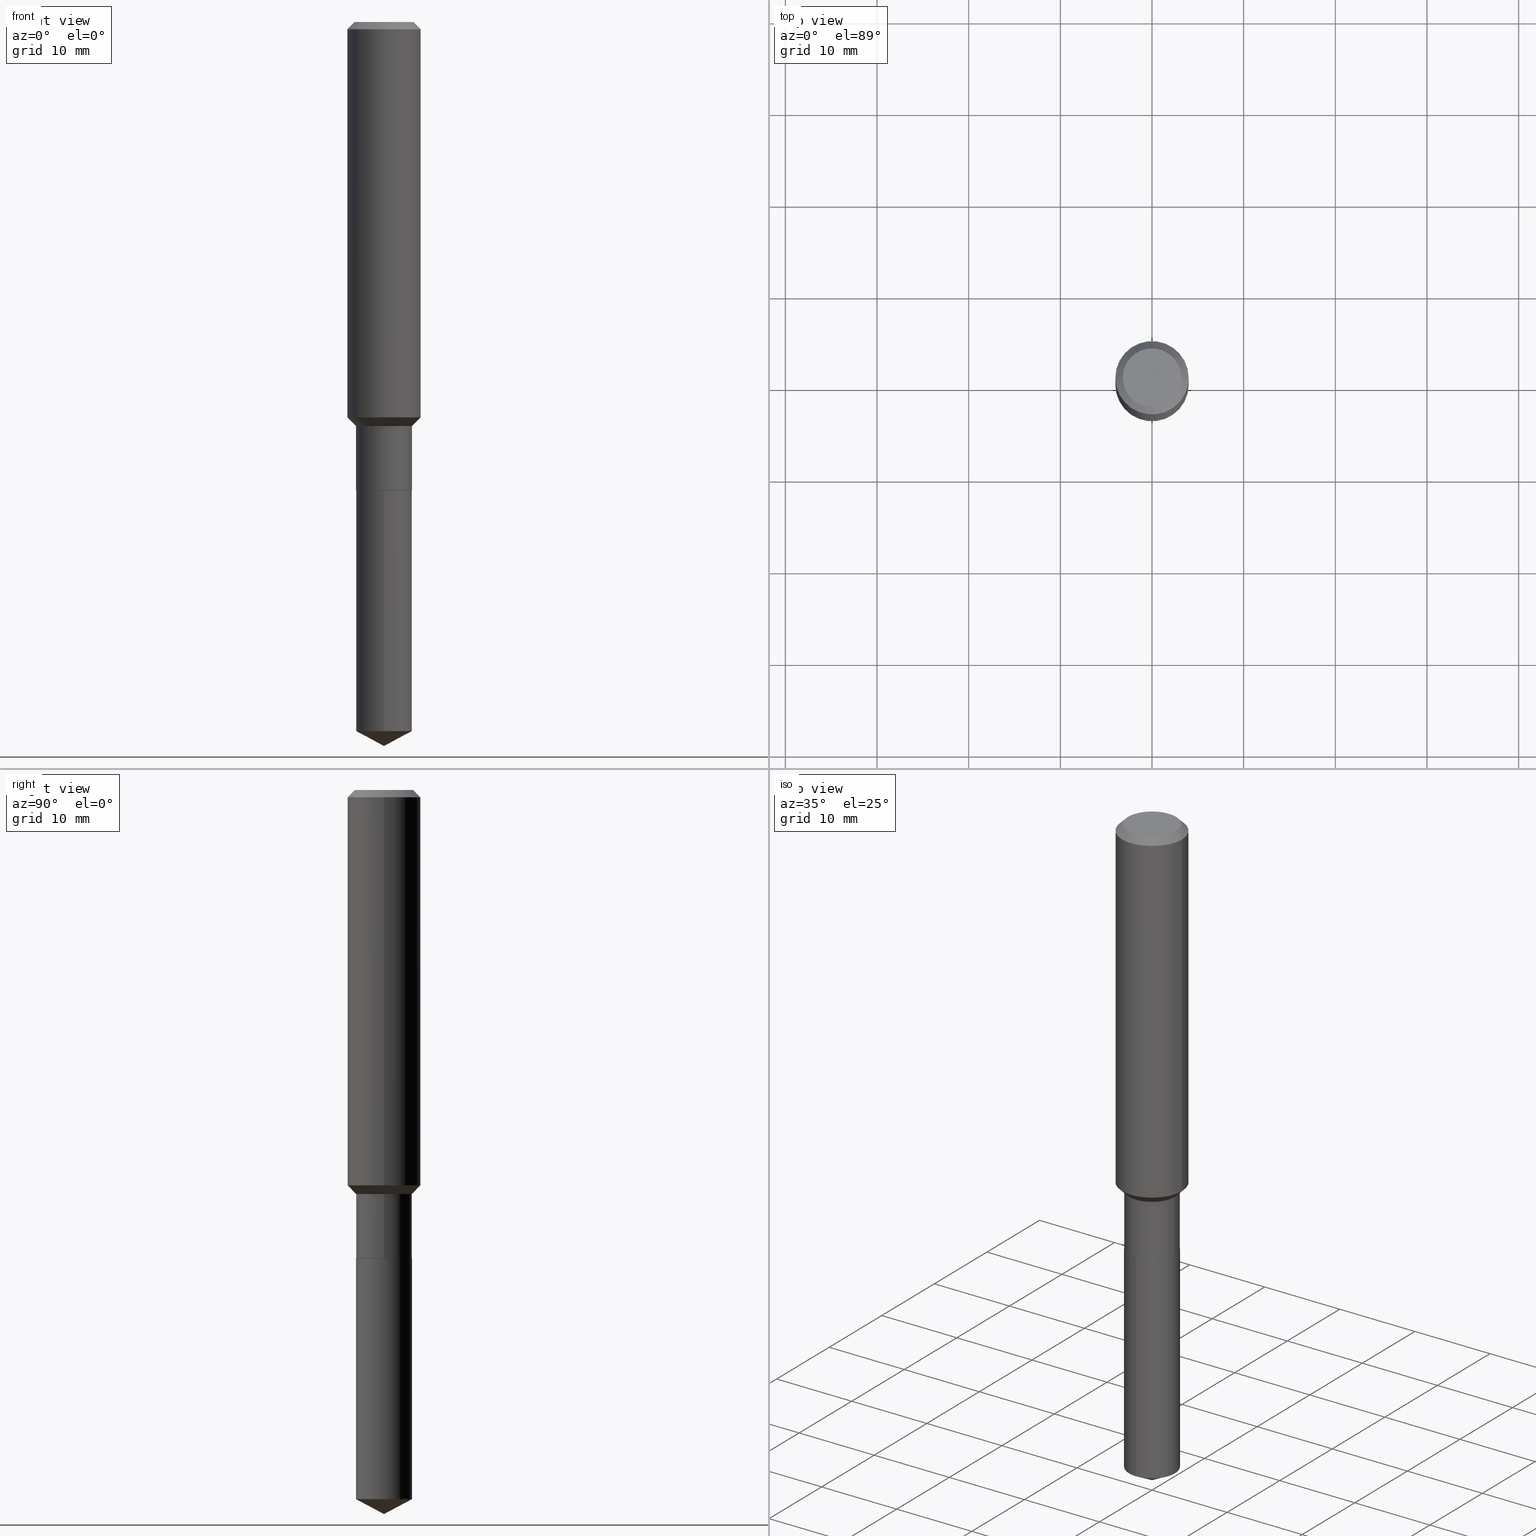
[diagram: canonical four-view strip — front | top / right | iso, engineering-drawing reading convention]
A machine part, canonical four-view strip (front | top / right | iso — engineering-drawing reading convention). The complete STEP part file that produces these views, byte-faithful:
ISO-10303-21;
HEADER;
FILE_DESCRIPTION (( 'STEP AP203' ),
    '1' );
FILE_NAME ('67631.STEP',
    '2024-04-25T07:45:41',
    ( '' ),
    ( '' ),
    'SwSTEP 2.0',
    'SolidWorks 2023',
    '' );
FILE_SCHEMA (( 'CONFIG_CONTROL_DESIGN' ));
ENDSEC;

DATA;
#1 = CARTESIAN_POINT ( 'NONE',  ( 4.919794144283257815E-29, -7.024162157484641016E-15, -2.011800000000000033 ) ) ;
#2 = PERSON_AND_ORGANIZATION_ROLE ( 'creator' ) ;
#3 = LINE ( 'NONE', #162, #369 ) ;
#4 = CIRCLE ( 'NONE', #431, 0.1201000000000000401 ) ;
#5 = ORIENTED_EDGE ( 'NONE', *, *, #61, .T. ) ;
#6 = FACE_OUTER_BOUND ( 'NONE', #237, .T. ) ;
#7 = ORIENTED_EDGE ( 'NONE', *, *, #128, .T. ) ;
#8 = PRODUCT ( '67631', '67631', '', ( #468 ) ) ;
#9 = DIRECTION ( 'NONE',  ( -2.438088387897960049E-29, 3.491481338843145188E-15, 1.000000000000000000 ) ) ;
#10 = CIRCLE ( 'NONE', #480, 0.1260000000000000009 ) ;
#11 = CIRCLE ( 'NONE', #453, 0.1200999999999999984 ) ;
#12 = SECURITY_CLASSIFICATION_LEVEL ( 'unclassified' ) ;
#13 = ORIENTED_EDGE ( 'NONE', *, *, #61, .F. ) ;
#14 = DIRECTION ( 'NONE',  ( 1.000000000000000000, -6.982962677686265922E-15, 0.000000000000000000 ) ) ;
#15 = EDGE_LOOP ( 'NONE', ( #247, #105, #462, #13 ) ) ;
#16 = CARTESIAN_POINT ( 'NONE',  ( -0.1575000000000000011, 9.898349595620272334E-16, -0.03150000000000018757 ) ) ;
#17 = CYLINDRICAL_SURFACE ( 'NONE', #236, 0.1575000000000000844 ) ;
#18 = ORIENTED_EDGE ( 'NONE', *, *, #154, .T. ) ;
#19 = DIRECTION ( 'NONE',  ( -6.982962677686267499E-15, -1.000000000000000000, 3.541896320645549825E-15 ) ) ;
#20 = CIRCLE ( 'NONE', #421, 0.1200999999999999984 ) ;
#21 = CC_DESIGN_SECURITY_CLASSIFICATION ( #406, ( #422 ) ) ;
#22 = EDGE_LOOP ( 'NONE', ( #458, #360, #288, #272 ) ) ;
#23 = DIRECTION ( 'NONE',  ( -2.445582076561770869E-29, 3.491319129216855831E-15, 1.000000000000000000 ) ) ;
#24 = EDGE_CURVE ( 'NONE', #467, #350, #124, .T. ) ;
#25 = COORDINATED_UNIVERSAL_TIME_OFFSET ( 5, 0, .BEHIND. ) ;
#26 = ORIENTED_EDGE ( 'NONE', *, *, #414, .T. ) ;
#27 = DIRECTION ( 'NONE',  ( -2.445582076561770869E-29, 3.491319129216855831E-15, 1.000000000000000000 ) ) ;
#28 = PRODUCT_RELATED_PRODUCT_CATEGORY ( 'detail', '', ( #8 ) ) ;
#29 = DIRECTION ( 'NONE',  ( 1.000000000000000000, -6.982962677686265922E-15, 4.876281427513067258E-29 ) ) ;
#30 = CARTESIAN_POINT ( 'NONE',  ( 4.919794144283257815E-29, -7.024162157484641016E-15, -2.011800000000000033 ) ) ;
#31 = CIRCLE ( 'NONE', #301, 0.1200999999999999984 ) ;
#32 = CONICAL_SURFACE ( 'NONE', #309, 0.1575000000000000011, 0.7853981633974452814 ) ;
#33 = AXIS2_PLACEMENT_3D ( 'NONE', #333, #43, #381 ) ;
#34 = EDGE_CURVE ( 'NONE', #42, #181, #263, .T. ) ;
#35 = VERTEX_POINT ( 'NONE', #380 ) ;
#36 = CALENDAR_DATE ( 2024, 25, 4 ) ;
#37 = DIRECTION ( 'NONE',  ( -2.445582076561770869E-29, 3.491319129216855831E-15, 1.000000000000000000 ) ) ;
#38 = ADVANCED_FACE ( 'NONE', ( #79 ), #330, .T. ) ;
#39 = CC_DESIGN_DATE_AND_TIME_ASSIGNMENT ( #285, #466, ( #406 ) ) ;
#40 = ORIENTED_EDGE ( 'NONE', *, *, #148, .F. ) ;
#41 = PERSON_AND_ORGANIZATION ( #371, #198 ) ;
#42 = VERTEX_POINT ( 'NONE', #259 ) ;
#43 = DIRECTION ( 'NONE',  ( -2.445468806185136597E-29, 3.491481338843145583E-15, 1.000000000000000000 ) ) ;
#44 = VECTOR ( 'NONE', #164, 39.37007874015748143 ) ;
#45 = APPROVAL_PERSON_ORGANIZATION ( #111, #86, #60 ) ;
#46 = DIRECTION ( 'NONE',  ( -2.445582076561770869E-29, 3.491319129216855831E-15, 1.000000000000000000 ) ) ;
#47 = ORIENTED_EDGE ( 'NONE', *, *, #134, .T. ) ;
#48 = UNCERTAINTY_MEASURE_WITH_UNIT (LENGTH_MEASURE( 1.000000000000000082E-05 ), #294, 'distance_accuracy_value', 'NONE');
#49 = CARTESIAN_POINT ( 'NONE',  ( 0.1195999999999999980, -7.859324493735918300E-15, -2.011800000000000033 ) ) ;
#50 = ORIENTED_EDGE ( 'NONE', *, *, #243, .F. ) ;
#51 = EDGE_CURVE ( 'NONE', #317, #471, #10, .T. ) ;
#52 = ORIENTED_EDGE ( 'NONE', *, *, #51, .T. ) ;
#53 = ADVANCED_BREP_SHAPE_REPRESENTATION ( '67631', ( #165, #482, #141 ), #85 ) ;
#54 = CARTESIAN_POINT ( 'NONE',  ( -9.439721640706201686E-47, 1.347742071746726764E-32, 3.860086710912459732E-18 ) ) ;
#55 = CARTESIAN_POINT ( 'NONE',  ( 4.919794144283257815E-29, -7.024162157484641016E-15, -2.011800000000000033 ) ) ;
#56 = CONICAL_SURFACE ( 'NONE', #33, 0.1200999999999999984, 0.7853981633974510546 ) ;
#57 = PERSON_AND_ORGANIZATION_ROLE ( 'classification_officer' ) ;
#58 = VERTEX_POINT ( 'NONE', #446 ) ;
#59 = CARTESIAN_POINT ( 'NONE',  ( 0.1201000000000000401, -7.861070234405340592E-15, -2.011300000000000310 ) ) ;
#60 = APPROVAL_ROLE ( '' ) ;
#61 = EDGE_CURVE ( 'NONE', #425, #42, #118, .T. ) ;
#62 = ORIENTED_EDGE ( 'NONE', *, *, #186, .F. ) ;
#63 = DIRECTION ( 'NONE',  ( 1.000000000000000000, -6.982962677686267499E-15, 4.876176775795936353E-29 ) ) ;
#64 = DIRECTION ( 'NONE',  ( 0.7071067811865453523, -7.319954787623248157E-15, -0.7071067811865496822 ) ) ;
#65 = DIRECTION ( 'NONE',  ( 1.000000000000000000, -6.982962677686265922E-15, 4.876281427513067258E-29 ) ) ;
#66 = PERSON_AND_ORGANIZATION ( #371, #198 ) ;
#67 = ORIENTED_EDGE ( 'NONE', *, *, #332, .T. ) ;
#68 = LENGTH_MEASURE_WITH_UNIT ( LENGTH_MEASURE( 0.02539999999999999897 ), #106 );
#69 = FACE_OUTER_BOUND ( 'NONE', #386, .T. ) ;
#70 = AXIS2_PLACEMENT_3D ( 'NONE', #450, #271, #277 ) ;
#71 = DIRECTION ( 'NONE',  ( -2.445582076561770869E-29, 3.491319129216855831E-15, 1.000000000000000000 ) ) ;
#72 = CARTESIAN_POINT ( 'NONE',  ( 4.918571409880165574E-29, -7.022416416815219512E-15, -2.011300000000000310 ) ) ;
#73 = CARTESIAN_POINT ( 'NONE',  ( 0.000000000000000000, 0.000000000000000000, 0.000000000000000000 ) ) ;
#74 = PERSON_AND_ORGANIZATION_ROLE ( 'design_owner' ) ;
#75 = LINE ( 'NONE', #155, #349 ) ;
#76 = CARTESIAN_POINT ( 'NONE',  ( -0.1201000000000000539, -5.687753888607810649E-15, -2.011300000000000310 ) ) ;
#77 = CALENDAR_DATE ( 2024, 25, 4 ) ;
#78 = CC_DESIGN_DATE_AND_TIME_ASSIGNMENT ( #144, #401, ( #346 ) ) ;
#79 = FACE_OUTER_BOUND ( 'NONE', #276, .T. ) ;
#80 = FACE_OUTER_BOUND ( 'NONE', #239, .T. ) ;
#81 = EDGE_LOOP ( 'NONE', ( #206, #47, #94, #464 ) ) ;
#82 = DIMENSIONAL_EXPONENTS ( 1.000000000000000000, 0.000000000000000000, 0.000000000000000000, 0.000000000000000000, 0.000000000000000000, 0.000000000000000000, 0.000000000000000000 ) ;
#83 = CARTESIAN_POINT ( 'NONE',  ( -9.439721640706201686E-47, 1.347742071746726764E-32, 3.860086710912459732E-18 ) ) ;
#84 = ORIENTED_EDGE ( 'NONE', *, *, #137, .F. ) ;
#85 =( GEOMETRIC_REPRESENTATION_CONTEXT ( 3 ) GLOBAL_UNCERTAINTY_ASSIGNED_CONTEXT ( ( #48 ) ) GLOBAL_UNIT_ASSIGNED_CONTEXT ( ( #294, #367, #257 ) ) REPRESENTATION_CONTEXT ( 'NONE', 'WORKASPACE' ) );
#86 = APPROVAL ( #437, 'UNSPECIFIED' ) ;
#87 = DIRECTION ( 'NONE',  ( -0.7071067811865493491, 7.493145998870358893E-15, 0.7071067811865454633 ) ) ;
#88 = EDGE_CURVE ( 'NONE', #58, #282, #169, .T. ) ;
#89 = CARTESIAN_POINT ( 'NONE',  ( 7.605793619834994444E-29, -1.085935342234260629E-14, -3.110199999999999854 ) ) ;
#90 = AXIS2_PLACEMENT_3D ( 'NONE', #1, #439, #413 ) ;
#91 = ORIENTED_EDGE ( 'NONE', *, *, #414, .F. ) ;
#92 = EDGE_LOOP ( 'NONE', ( #136, #184, #473, #390 ) ) ;
#93 = CARTESIAN_POINT ( 'NONE',  ( 4.244355660014922752E-29, -6.059815011696163002E-15, -1.735600000000000032 ) ) ;
#94 = ORIENTED_EDGE ( 'NONE', *, *, #88, .F. ) ;
#95 = CARTESIAN_POINT ( 'NONE',  ( 0.1575000000000000011, -1.190510096822576026E-15, -0.03150000000000018757 ) ) ;
#96 = AXIS2_PLACEMENT_3D ( 'NONE', #54, #258, #65 ) ;
#97 = CARTESIAN_POINT ( 'NONE',  ( 7.449850776551887976E-29, -1.063607737509207381E-14, -3.046341697257457071 ) ) ;
#98 = VECTOR ( 'NONE', #64, 39.37007874015748143 ) ;
#99 = ADVANCED_FACE ( 'NONE', ( #120 ), #234, .T. ) ;
#100 = CONICAL_SURFACE ( 'NONE', #351, 0.1575000000000000011, 0.7853981633974452814 ) ;
#101 = CALENDAR_DATE ( 2024, 25, 4 ) ;
#102 = ORIENTED_EDGE ( 'NONE', *, *, #167, .F. ) ;
#103 = CARTESIAN_POINT ( 'NONE',  ( 4.152895126663598802E-29, -5.929233609623429802E-15, -1.698199999999999932 ) ) ;
#104 = APPROVAL_ROLE ( '' ) ;
#105 = ORIENTED_EDGE ( 'NONE', *, *, #377, .T. ) ;
#106 =( LENGTH_UNIT ( ) NAMED_UNIT ( * ) SI_UNIT ( $, .METRE. ) );
#107 = DIRECTION ( 'NONE',  ( -2.445582076561770869E-29, 3.491319129216855831E-15, 1.000000000000000000 ) ) ;
#108 = PERSON_AND_ORGANIZATION_ROLE ( 'design_supplier' ) ;
#109 = FACE_OUTER_BOUND ( 'NONE', #394, .T. ) ;
#110 = DIRECTION ( 'NONE',  ( -2.445468806185136597E-29, 3.491481338843145583E-15, 1.000000000000000000 ) ) ;
#111 = PERSON_AND_ORGANIZATION ( #371, #198 ) ;
#112 = ORIENTED_EDGE ( 'NONE', *, *, #51, .F. ) ;
#113 = APPLICATION_CONTEXT ( 'configuration controlled 3d designs of mechanical parts and assemblies' ) ;
#114 = DIRECTION ( 'NONE',  ( -0.7071067811866441621, 7.493145998870704414E-15, 0.7071067811864508723 ) ) ;
#115 = CARTESIAN_POINT ( 'NONE',  ( 4.919794144283257815E-29, -7.024162157484641016E-15, -2.011800000000000033 ) ) ;
#116 = AXIS2_PLACEMENT_3D ( 'NONE', #362, #23, #146 ) ;
#117 = AXIS2_PLACEMENT_3D ( 'NONE', #455, #126, #127 ) ;
#118 = LINE ( 'NONE', #373, #444 ) ;
#119 = ADVANCED_FACE ( 'NONE', ( #157 ), #306, .T. ) ;
#120 = FACE_OUTER_BOUND ( 'NONE', #81, .T. ) ;
#121 = ORIENTED_EDGE ( 'NONE', *, *, #476, .F. ) ;
#122 = APPROVAL ( #213, 'UNSPECIFIED' ) ;
#123 = DIRECTION ( 'NONE',  ( 1.000000000000000000, -6.982962677686266711E-15, 4.876176775795935232E-29 ) ) ;
#124 = CIRCLE ( 'NONE', #90, 0.1195999999999999980 ) ;
#125 = APPROVAL_STATUS ( 'not_yet_approved' ) ;
#126 = DIRECTION ( 'NONE',  ( 2.445582076561770589E-29, -3.491319129216855831E-15, -1.000000000000000000 ) ) ;
#127 = DIRECTION ( 'NONE',  ( 6.982962677686265922E-15, 1.000000000000000000, -3.491319129216855831E-15 ) ) ;
#128 = EDGE_CURVE ( 'NONE', #214, #425, #200, .T. ) ;
#129 = EDGE_CURVE ( 'NONE', #350, #214, #279, .T. ) ;
#130 = AXIS2_PLACEMENT_3D ( 'NONE', #287, #179, #329 ) ;
#131 = VECTOR ( 'NONE', #87, 39.37007874015748854 ) ;
#132 = DIRECTION ( 'NONE',  ( 0.7071067811866441621, -2.468850131083269169E-15, 0.7071067811864508723 ) ) ;
#133 = VERTEX_POINT ( 'NONE', #204 ) ;
#134 = EDGE_CURVE ( 'NONE', #428, #282, #75, .T. ) ;
#135 = APPROVAL_DATE_TIME ( #354, #122 ) ;
#136 = ORIENTED_EDGE ( 'NONE', *, *, #456, .T. ) ;
#137 = EDGE_CURVE ( 'NONE', #425, #133, #361, .T. ) ;
#138 = DIRECTION ( 'NONE',  ( 1.000000000000000000, -6.982962677686265922E-15, 0.000000000000000000 ) ) ;
#139 = ORIENTED_EDGE ( 'NONE', *, *, #456, .F. ) ;
#140 = CARTESIAN_POINT ( 'NONE',  ( 7.449850776551887976E-29, -1.063607737509207381E-14, -3.046341697257457071 ) ) ;
#141 = AXIS2_PLACEMENT_3D ( 'NONE', #223, #363, #478 ) ;
#142 = VERTEX_POINT ( 'NONE', #440 ) ;
#143 = DIRECTION ( 'NONE',  ( -2.445468806185136597E-29, 3.491481338843145583E-15, 1.000000000000000000 ) ) ;
#144 = DATE_AND_TIME ( #77, #338 ) ;
#145 = ORIENTED_EDGE ( 'NONE', *, *, #459, .T. ) ;
#146 = DIRECTION ( 'NONE',  ( -6.982962677686267499E-15, -1.000000000000000000, 3.541896320645549825E-15 ) ) ;
#147 = SHAPE_DEFINITION_REPRESENTATION ( #457, #53 ) ;
#148 = EDGE_CURVE ( 'NONE', #252, #428, #31, .T. ) ;
#149 = DIRECTION ( 'NONE',  ( -2.445468806185136597E-29, 3.491481338843145583E-15, 1.000000000000000000 ) ) ;
#150 = APPLICATION_PROTOCOL_DEFINITION ( 'international standard', 'config_control_design', 1994, #153 ) ;
#151 = AXIS2_PLACEMENT_3D ( 'NONE', #250, #185, #245 ) ;
#152 = AXIS2_PLACEMENT_3D ( 'NONE', #403, #226, #398 ) ;
#153 = APPLICATION_CONTEXT ( 'configuration controlled 3d designs of mechanical parts and assemblies' ) ;
#154 = EDGE_CURVE ( 'NONE', #133, #425, #20, .T. ) ;
#155 = CARTESIAN_POINT ( 'NONE',  ( 8.533618256479295172E-16, 0.1200999999999929901, -2.011800000000000477 ) ) ;
#156 = CC_DESIGN_PERSON_AND_ORGANIZATION_ASSIGNMENT ( #251, #57, ( #406 ) ) ;
#157 = FACE_OUTER_BOUND ( 'NONE', #22, .T. ) ;
#158 = AXIS2_PLACEMENT_3D ( 'NONE', #93, #472, #359 ) ;
#159 = DIRECTION ( 'NONE',  ( -2.445582076561770869E-29, 3.491319129216855831E-15, 1.000000000000000000 ) ) ;
#160 = AXIS2_PLACEMENT_3D ( 'NONE', #115, #222, #192 ) ;
#161 = COORDINATED_UNIVERSAL_TIME_OFFSET ( 5, 0, .BEHIND. ) ;
#162 = CARTESIAN_POINT ( 'NONE',  ( -8.386538175900712832E-16, -0.1201000000000070206, -2.011799999999999589 ) ) ;
#163 = ADVANCED_FACE ( 'NONE', ( #327 ), #190, .T. ) ;
#164 = DIRECTION ( 'NONE',  ( -2.445468806185136877E-29, 3.491481338843145188E-15, 1.000000000000000000 ) ) ;
#165 = MANIFOLD_SOLID_BREP ( 'Body-Move/Copy2[1]', #336 ) ;
#166 = DESIGN_CONTEXT ( 'detailed design', #113, 'design' ) ;
#167 = EDGE_CURVE ( 'NONE', #428, #252, #393, .T. ) ;
#168 = ORIENTED_EDGE ( 'NONE', *, *, #215, .T. ) ;
#169 = CIRCLE ( 'NONE', #299, 0.1200999999999999984 ) ;
#170 = ORIENTED_EDGE ( 'NONE', *, *, #129, .T. ) ;
#171 = CARTESIAN_POINT ( 'NONE',  ( 0.1575000000000000011, -1.209798283909146741E-15, -0.03150000000000018757 ) ) ;
#172 = ORIENTED_EDGE ( 'NONE', *, *, #186, .T. ) ;
#173 = CARTESIAN_POINT ( 'NONE',  ( 4.918571409880165574E-29, -7.022416416815219512E-15, -2.011300000000000310 ) ) ;
#174 = DIRECTION ( 'NONE',  ( -2.445468806185136597E-29, 3.491481338843145583E-15, 1.000000000000000000 ) ) ;
#175 = EDGE_LOOP ( 'NONE', ( #397, #18, #5, #419 ) ) ;
#176 = DIRECTION ( 'NONE',  ( -2.445468806185136597E-29, 3.491481338843145583E-15, 1.000000000000000000 ) ) ;
#177 = AXIS2_PLACEMENT_3D ( 'NONE', #55, #46, #353 ) ;
#178 = EDGE_CURVE ( 'NONE', #35, #42, #248, .T. ) ;
#179 = DIRECTION ( 'NONE',  ( 2.438088387897960049E-29, -3.491481338843145188E-15, -1.000000000000000000 ) ) ;
#180 = LOCAL_TIME ( 3, 45, 41.00000000000000000, #321 ) ;
#181 = VERTEX_POINT ( 'NONE', #171 ) ;
#182 = DIRECTION ( 'NONE',  ( -0.7071067811865453523, 2.468850131082234184E-15, -0.7071067811865496822 ) ) ;
#183 = CARTESIAN_POINT ( 'NONE',  ( 4.244355660014922752E-29, -6.059815011696163002E-15, -1.735600000000000032 ) ) ;
#184 = ORIENTED_EDGE ( 'NONE', *, *, #298, .T. ) ;
#185 = DIRECTION ( 'NONE',  ( -2.445468806185136597E-29, 3.491481338843145583E-15, 1.000000000000000000 ) ) ;
#186 = EDGE_CURVE ( 'NONE', #292, #133, #475, .T. ) ;
#187 = CARTESIAN_POINT ( 'NONE',  ( 0.1575000000000000844, -1.099816621735587677E-15, 7.679978421878603638E-30 ) ) ;
#188 = DIRECTION ( 'NONE',  ( 2.445468806185136597E-29, -3.491481338843145583E-15, -1.000000000000000000 ) ) ;
#189 = DIRECTION ( 'NONE',  ( 0.7071067811865493491, -2.468850131082277177E-15, 0.7071067811865454633 ) ) ;
#190 = CONICAL_SURFACE ( 'NONE', #313, 74.04434902938376695, 1.082104136236487824 ) ;
#191 = CONICAL_SURFACE ( 'NONE', #160, 0.1195999999999999980, 0.7853981633975849475 ) ;
#192 = DIRECTION ( 'NONE',  ( 1.000000000000000000, -6.982962677686269866E-15, 0.000000000000000000 ) ) ;
#193 = ORIENTED_EDGE ( 'NONE', *, *, #154, .F. ) ;
#194 = ADVANCED_FACE ( 'NONE', ( #109 ), #465, .F. ) ;
#195 = CARTESIAN_POINT ( 'NONE',  ( -0.1260000000000000009, 9.348441284752484904E-16, 3.860086710906114178E-18 ) ) ;
#196 = CLOSED_SHELL ( 'NONE', ( #424, #219, #407, #305, #392, #38, #255, #447, #449, #194, #442, #387 ) ) ;
#197 = ORIENTED_EDGE ( 'NONE', *, *, #275, .T. ) ;
#198 = ORGANIZATION ( 'UNSPECIFIED', 'UNSPECIFIED', '' ) ;
#199 = CARTESIAN_POINT ( 'NONE',  ( 0.1200999999999999984, -6.898468829286284082E-15, -1.735600000000000032 ) ) ;
#200 = LINE ( 'NONE', #344, #44 ) ;
#201 = EDGE_LOOP ( 'NONE', ( #355, #382, #170, #307 ) ) ;
#202 = CARTESIAN_POINT ( 'NONE',  ( -0.1200999999999999984, -5.206453186048282788E-15, -1.735600000000000032 ) ) ;
#203 = ORIENTED_EDGE ( 'NONE', *, *, #441, .T. ) ;
#204 = CARTESIAN_POINT ( 'NONE',  ( -0.1200999999999999984, -5.687753888607810649E-15, -1.735600000000000032 ) ) ;
#205 = DATE_AND_TIME ( #318, #385 ) ;
#206 = ORIENTED_EDGE ( 'NONE', *, *, #148, .T. ) ;
#207 = CIRCLE ( 'NONE', #405, 0.1575000000000000011 ) ;
#208 = CARTESIAN_POINT ( 'NONE',  ( -0.1575000000000000844, 1.119104808822158392E-15, -7.747322767151481189E-30 ) ) ;
#209 = APPROVAL_DATE_TIME ( #205, #86 ) ;
#210 = ORIENTED_EDGE ( 'NONE', *, *, #88, .T. ) ;
#211 = CARTESIAN_POINT ( 'NONE',  ( 0.000000000000000000, 0.000000000000000000, 0.000000000000000000 ) ) ;
#212 = CARTESIAN_POINT ( 'NONE',  ( -8.386538175900460396E-16, -0.1201000000000106288, -3.046341697257456627 ) ) ;
#213 = APPROVAL_STATUS ( 'not_yet_approved' ) ;
#214 = VERTEX_POINT ( 'NONE', #59 ) ;
#215 = EDGE_CURVE ( 'NONE', #35, #388, #217, .T. ) ;
#216 = CARTESIAN_POINT ( 'NONE',  ( 7.703226739483226095E-31, -1.099816621735597415E-16, -0.03150000000000018757 ) ) ;
#217 = LINE ( 'NONE', #208, #323 ) ;
#218 = ORIENTED_EDGE ( 'NONE', *, *, #441, .F. ) ;
#219 = ADVANCED_FACE ( 'NONE', ( #291 ), #32, .T. ) ;
#220 = VECTOR ( 'NONE', #114, 39.37007874015748143 ) ;
#221 = DIRECTION ( 'NONE',  ( -2.445468806185136877E-29, 3.491481338843145188E-15, 1.000000000000000000 ) ) ;
#222 = DIRECTION ( 'NONE',  ( -2.445468806185136597E-29, 3.491481338843145583E-15, 1.000000000000000000 ) ) ;
#223 = CARTESIAN_POINT ( 'NONE',  ( 0.000000000000000000, 0.000000000000000000, 0.000000000000000000 ) ) ;
#224 = CARTESIAN_POINT ( 'NONE',  ( 7.606253370953053519E-29, -1.085870075569026609E-14, -3.110199999999999854 ) ) ;
#225 = EDGE_CURVE ( 'NONE', #142, #428, #404, .T. ) ;
#226 = DIRECTION ( 'NONE',  ( -2.445468806185136597E-29, 3.491481338843145583E-15, 1.000000000000000000 ) ) ;
#227 = FACE_OUTER_BOUND ( 'NONE', #15, .T. ) ;
#228 = CARTESIAN_POINT ( 'NONE',  ( 0.000000000000000000, 0.000000000000000000, 0.000000000000000000 ) ) ;
#229 = DIRECTION ( 'NONE',  ( -2.445468806185136597E-29, 3.491481338843145583E-15, 1.000000000000000000 ) ) ;
#230 = FACE_OUTER_BOUND ( 'NONE', #326, .T. ) ;
#231 = DIRECTION ( 'NONE',  ( 1.000000000000000000, -6.982962677686266711E-15, 4.876176775795935232E-29 ) ) ;
#232 = ORIENTED_EDGE ( 'NONE', *, *, #243, .T. ) ;
#233 = EDGE_CURVE ( 'NONE', #388, #181, #207, .T. ) ;
#234 = CYLINDRICAL_SURFACE ( 'NONE', #273, 0.1200999999999999984 ) ;
#235 = CYLINDRICAL_SURFACE ( 'NONE', #310, 0.1575000000000000844 ) ;
#236 = AXIS2_PLACEMENT_3D ( 'NONE', #228, #372, #268 ) ;
#237 = EDGE_LOOP ( 'NONE', ( #210, #145 ) ) ;
#238 = DIRECTION ( 'NONE',  ( 1.000000000000000000, -6.982962677686265922E-15, 0.000000000000000000 ) ) ;
#239 = EDGE_LOOP ( 'NONE', ( #197, #168, #218, #357 ) ) ;
#240 = CC_DESIGN_APPROVAL ( #122, ( #406 ) ) ;
#241 = DIRECTION ( 'NONE',  ( -6.165590087286839185E-15, -0.8829475928589269884, 0.4694715627858908058 ) ) ;
#242 = ORIENTED_EDGE ( 'NONE', *, *, #233, .F. ) ;
#243 = EDGE_CURVE ( 'NONE', #471, #317, #416, .T. ) ;
#244 = ORIENTED_EDGE ( 'NONE', *, *, #225, .F. ) ;
#245 = DIRECTION ( 'NONE',  ( 1.000000000000000000, -6.982962677686265922E-15, 0.000000000000000000 ) ) ;
#246 = PERSON_AND_ORGANIZATION ( #371, #198 ) ;
#247 = ORIENTED_EDGE ( 'NONE', *, *, #137, .T. ) ;
#248 = CIRCLE ( 'NONE', #151, 0.1575000000000001954 ) ;
#249 = LOCAL_TIME ( 3, 45, 41.00000000000000000, #415 ) ;
#250 = CARTESIAN_POINT ( 'NONE',  ( 4.152895126663598802E-29, -5.929233609623429802E-15, -1.698199999999999932 ) ) ;
#251 = PERSON_AND_ORGANIZATION ( #371, #198 ) ;
#252 = VERTEX_POINT ( 'NONE', #212 ) ;
#253 = CARTESIAN_POINT ( 'NONE',  ( 8.533618256479545636E-16, 0.1200999999999893680, -3.046341697257457515 ) ) ;
#254 = DIRECTION ( 'NONE',  ( -6.982962677686265922E-15, -1.000000000000000000, 4.549288915344318469E-15 ) ) ;
#255 = ADVANCED_FACE ( 'NONE', ( #433 ), #368, .T. ) ;
#256 = EDGE_LOOP ( 'NONE', ( #322, #423, #342, #242 ) ) ;
#257 =( NAMED_UNIT ( * ) SI_UNIT ( $, .STERADIAN. ) SOLID_ANGLE_UNIT ( ) );
#258 = DIRECTION ( 'NONE',  ( -2.445468806185136597E-29, 3.491481338843145583E-15, 1.000000000000000000 ) ) ;
#259 = CARTESIAN_POINT ( 'NONE',  ( 0.1575000000000001954, -7.029050231359018071E-15, -1.698199999999999932 ) ) ;
#260 = AXIS2_PLACEMENT_3D ( 'NONE', #183, #174, #14 ) ;
#261 = DIRECTION ( 'NONE',  ( -1.000000000000000000, 6.982962677686265922E-15, 0.000000000000000000 ) ) ;
#262 = VECTOR ( 'NONE', #182, 39.37007874015748143 ) ;
#263 = LINE ( 'NONE', #187, #429 ) ;
#264 = DIRECTION ( 'NONE',  ( -6.982962677686265922E-15, -1.000000000000000000, 4.549288915344318469E-15 ) ) ;
#265 = DIRECTION ( 'NONE',  ( -2.445468806185136597E-29, 3.491481338843145583E-15, 1.000000000000000000 ) ) ;
#266 = CONICAL_SURFACE ( 'NONE', #116, 74.04434902938376695, 1.082104136236487824 ) ;
#267 = CC_DESIGN_APPROVAL ( #270, ( #346 ) ) ;
#268 = DIRECTION ( 'NONE',  ( 1.000000000000000000, -6.982962677686267499E-15, 4.876176775795936353E-29 ) ) ;
#269 = ORIENTED_EDGE ( 'NONE', *, *, #233, .T. ) ;
#270 = APPROVAL ( #125, 'UNSPECIFIED' ) ;
#271 = DIRECTION ( 'NONE',  ( -2.445468806185136597E-29, 3.491481338843145583E-15, 1.000000000000000000 ) ) ;
#272 = ORIENTED_EDGE ( 'NONE', *, *, #459, .F. ) ;
#273 = AXIS2_PLACEMENT_3D ( 'NONE', #378, #37, #490 ) ;
#274 = APPROVAL_PERSON_ORGANIZATION ( #485, #270, #379 ) ;
#275 = EDGE_CURVE ( 'NONE', #42, #35, #460, .T. ) ;
#276 = EDGE_LOOP ( 'NONE', ( #62, #345, #7, #193 ) ) ;
#277 = DIRECTION ( 'NONE',  ( 1.000000000000000000, -6.982962677686269866E-15, 0.000000000000000000 ) ) ;
#278 = PLANE ( 'NONE',  #370 ) ;
#279 = LINE ( 'NONE', #49, #331 ) ;
#280 = ADVANCED_FACE ( 'NONE', ( #69 ), #266, .T. ) ;
#281 = CONICAL_SURFACE ( 'NONE', #70, 0.1195999999999999980, 0.7853981633975849475 ) ;
#282 = VERTEX_POINT ( 'NONE', #408 ) ;
#283 = EDGE_CURVE ( 'NONE', #214, #292, #384, .T. ) ;
#284 = DIRECTION ( 'NONE',  ( -2.445468806185136597E-29, 3.491481338843145583E-15, 1.000000000000000000 ) ) ;
#285 = DATE_AND_TIME ( #316, #180 ) ;
#286 = ORIENTED_EDGE ( 'NONE', *, *, #476, .T. ) ;
#287 = CARTESIAN_POINT ( 'NONE',  ( -4.719860820353100843E-47, 6.738710358733633822E-33, 1.930043355456229866E-18 ) ) ;
#288 = ORIENTED_EDGE ( 'NONE', *, *, #340, .T. ) ;
#289 = AXIS2_PLACEMENT_3D ( 'NONE', #103, #143, #436 ) ;
#290 = FACE_OUTER_BOUND ( 'NONE', #477, .T. ) ;
#291 = FACE_OUTER_BOUND ( 'NONE', #347, .T. ) ;
#292 = VERTEX_POINT ( 'NONE', #76 ) ;
#293 = CARTESIAN_POINT ( 'NONE',  ( 7.703226739483226095E-31, -1.099816621735597415E-16, -0.03150000000000018757 ) ) ;
#294 =( CONVERSION_BASED_UNIT ( 'INCH', #68 ) LENGTH_UNIT ( ) NAMED_UNIT ( #82 ) );
#295 = DIRECTION ( 'NONE',  ( 6.273719981627770021E-15, 0.8829475928589302081, 0.4694715627858845886 ) ) ;
#296 = DIRECTION ( 'NONE',  ( -2.445468806185136877E-29, 3.491481338843145188E-15, 1.000000000000000000 ) ) ;
#297 = DIRECTION ( 'NONE',  ( -2.445468806185136597E-29, 3.491481338843145583E-15, 1.000000000000000000 ) ) ;
#298 = EDGE_CURVE ( 'NONE', #467, #292, #483, .T. ) ;
#299 = AXIS2_PLACEMENT_3D ( 'NONE', #337, #487, #448 ) ;
#300 = APPLICATION_PROTOCOL_DEFINITION ( 'international standard', 'config_control_design', 1994, #113 ) ;
#301 = AXIS2_PLACEMENT_3D ( 'NONE', #140, #107, #254 ) ;
#302 = CC_DESIGN_APPROVAL ( #86, ( #422 ) ) ;
#303 = CC_DESIGN_PERSON_AND_ORGANIZATION_ASSIGNMENT ( #66, #108, ( #422 ) ) ;
#304 = CARTESIAN_POINT ( 'NONE',  ( 0.000000000000000000, 0.000000000000000000, 0.000000000000000000 ) ) ;
#305 = ADVANCED_FACE ( 'NONE', ( #227 ), #56, .T. ) ;
#306 = CYLINDRICAL_SURFACE ( 'NONE', #177, 0.1200999999999999984 ) ;
#307 = ORIENTED_EDGE ( 'NONE', *, *, #488, .F. ) ;
#308 = VECTOR ( 'NONE', #295, 39.37007874015748143 ) ;
#309 = AXIS2_PLACEMENT_3D ( 'NONE', #427, #399, #261 ) ;
#310 = AXIS2_PLACEMENT_3D ( 'NONE', #211, #176, #63 ) ;
#311 = CARTESIAN_POINT ( 'NONE',  ( 0.1195999999999999980, -7.859324493735918300E-15, -2.011800000000000033 ) ) ;
#312 = CC_DESIGN_PERSON_AND_ORGANIZATION_ASSIGNMENT ( #246, #328, ( #422 ) ) ;
#313 = AXIS2_PLACEMENT_3D ( 'NONE', #364, #27, #19 ) ;
#314 = EDGE_LOOP ( 'NONE', ( #244, #67, #102 ) ) ;
#315 = DIRECTION ( 'NONE',  ( 1.000000000000000000, -6.982962677686265922E-15, 4.876176775795935793E-29 ) ) ;
#316 = CALENDAR_DATE ( 2024, 25, 4 ) ;
#317 = VERTEX_POINT ( 'NONE', #195 ) ;
#318 = CALENDAR_DATE ( 2024, 25, 4 ) ;
#319 = ORIENTED_EDGE ( 'NONE', *, *, #332, .F. ) ;
#320 = CC_DESIGN_PERSON_AND_ORGANIZATION_ASSIGNMENT ( #41, #2, ( #346 ) ) ;
#321 = COORDINATED_UNIVERSAL_TIME_OFFSET ( 5, 0, .BEHIND. ) ;
#322 = ORIENTED_EDGE ( 'NONE', *, *, #215, .F. ) ;
#323 = VECTOR ( 'NONE', #391, 39.37007874015748143 ) ;
#324 = LINE ( 'NONE', #16, #262 ) ;
#325 = DIRECTION ( 'NONE',  ( -2.445582076561770869E-29, 3.491319129216855831E-15, 1.000000000000000000 ) ) ;
#326 = EDGE_LOOP ( 'NONE', ( #434, #172, #84, #432 ) ) ;
#327 = FACE_OUTER_BOUND ( 'NONE', #314, .T. ) ;
#328 = PERSON_AND_ORGANIZATION_ROLE ( 'creator' ) ;
#329 = DIRECTION ( 'NONE',  ( -1.000000000000000000, 6.982962677686265922E-15, -4.876176775795935793E-29 ) ) ;
#330 = CYLINDRICAL_SURFACE ( 'NONE', #410, 0.1201000000000000262 ) ;
#331 = VECTOR ( 'NONE', #132, 39.37007874015748143 ) ;
#332 = EDGE_CURVE ( 'NONE', #142, #252, #341, .T. ) ;
#333 = CARTESIAN_POINT ( 'NONE',  ( 4.244355660014922752E-29, -6.059815011696163002E-15, -1.735600000000000032 ) ) ;
#334 = CYLINDRICAL_SURFACE ( 'NONE', #411, 0.1201000000000000262 ) ;
#335 = DIRECTION ( 'NONE',  ( 1.000000000000000000, -6.982962677686263555E-15, 0.000000000000000000 ) ) ;
#336 = CLOSED_SHELL ( 'NONE', ( #99, #280, #163, #119, #365 ) ) ;
#337 = CARTESIAN_POINT ( 'NONE',  ( 4.919794144283257815E-29, -7.024162157484641016E-15, -2.011800000000000033 ) ) ;
#338 = LOCAL_TIME ( 3, 45, 41.00000000000000000, #161 ) ;
#339 = ORIENTED_EDGE ( 'NONE', *, *, #24, .F. ) ;
#340 = EDGE_CURVE ( 'NONE', #252, #58, #3, .T. ) ;
#341 = LINE ( 'NONE', #89, #376 ) ;
#342 = ORIENTED_EDGE ( 'NONE', *, *, #34, .T. ) ;
#343 = FACE_OUTER_BOUND ( 'NONE', #201, .T. ) ;
#344 = CARTESIAN_POINT ( 'NONE',  ( 0.1201000000000000262, -8.386538175901207842E-16, 5.856288307730919352E-30 ) ) ;
#345 = ORIENTED_EDGE ( 'NONE', *, *, #488, .T. ) ;
#346 = PRODUCT_DEFINITION ( 'UNKNOWN', '', #422, #166 ) ;
#347 = EDGE_LOOP ( 'NONE', ( #50, #26, #203, #121 ) ) ;
#348 = COORDINATED_UNIVERSAL_TIME_OFFSET ( 5, 0, .BEHIND. ) ;
#349 = VECTOR ( 'NONE', #159, 39.37007874015748143 ) ;
#350 = VERTEX_POINT ( 'NONE', #311 ) ;
#351 = AXIS2_PLACEMENT_3D ( 'NONE', #216, #188, #481 ) ;
#352 = DIRECTION ( 'NONE',  ( 1.000000000000000000, -6.982962677686265922E-15, 0.000000000000000000 ) ) ;
#353 = DIRECTION ( 'NONE',  ( -6.982962677686265922E-15, -1.000000000000000000, 4.549288915344318469E-15 ) ) ;
#354 = DATE_AND_TIME ( #101, #445 ) ;
#355 = ORIENTED_EDGE ( 'NONE', *, *, #298, .F. ) ;
#356 = CARTESIAN_POINT ( 'NONE',  ( 4.244355660014922752E-29, -6.059815011696163002E-15, -1.735600000000000032 ) ) ;
#357 = ORIENTED_EDGE ( 'NONE', *, *, #34, .F. ) ;
#358 = CARTESIAN_POINT ( 'NONE',  ( -0.1195999999999999980, -6.171703818341449711E-15, -2.011800000000000033 ) ) ;
#359 = DIRECTION ( 'NONE',  ( 1.000000000000000000, -6.982962677686265922E-15, 0.000000000000000000 ) ) ;
#360 = ORIENTED_EDGE ( 'NONE', *, *, #167, .T. ) ;
#361 = CIRCLE ( 'NONE', #260, 0.1200999999999999984 ) ;
#362 = CARTESIAN_POINT ( 'NONE',  ( -8.867673742257606467E-28, 1.265944819352692368E-13, 36.25987874015748247 ) ) ;
#363 = DIRECTION ( 'NONE',  ( 0.000000000000000000, 0.000000000000000000, 1.000000000000000000 ) ) ;
#364 = CARTESIAN_POINT ( 'NONE',  ( -8.867673742257606467E-28, 1.265944819352692368E-13, 36.25987874015748247 ) ) ;
#365 = ADVANCED_FACE ( 'NONE', ( #6 ), #451, .F. ) ;
#366 = DIRECTION ( 'NONE',  ( -2.445468806185136597E-29, 3.491481338843145583E-15, 1.000000000000000000 ) ) ;
#367 =( NAMED_UNIT ( * ) PLANE_ANGLE_UNIT ( ) SI_UNIT ( $, .RADIAN. ) );
#368 = CONICAL_SURFACE ( 'NONE', #158, 0.1200999999999999984, 0.7853981633974510546 ) ;
#369 = VECTOR ( 'NONE', #420, 39.37007874015748143 ) ;
#370 = AXIS2_PLACEMENT_3D ( 'NONE', #389, #9, #315 ) ;
#371 = PERSON ( 'UNSPECIFIED', 'UNSPECIFIED', 'UNSPECIFIED', ('UNSPECIFIED'), ('UNSPECIFIED'), ('UNSPECIFIED') ) ;
#372 = DIRECTION ( 'NONE',  ( -2.445468806185136597E-29, 3.491481338843145583E-15, 1.000000000000000000 ) ) ;
#373 = CARTESIAN_POINT ( 'NONE',  ( 0.1200999999999999984, -6.898468829286284082E-15, -1.735600000000000032 ) ) ;
#374 = LINE ( 'NONE', #95, #98 ) ;
#375 = CARTESIAN_POINT ( 'NONE',  ( -0.1195999999999999980, -6.174353045515560912E-15, -2.011800000000000033 ) ) ;
#376 = VECTOR ( 'NONE', #241, 39.37007874015748854 ) ;
#377 = EDGE_CURVE ( 'NONE', #133, #35, #418, .T. ) ;
#378 = CARTESIAN_POINT ( 'NONE',  ( 4.919794144283257815E-29, -7.024162157484641016E-15, -2.011800000000000033 ) ) ;
#379 = APPROVAL_ROLE ( '' ) ;
#380 = CARTESIAN_POINT ( 'NONE',  ( -0.1575000000000001954, -4.810128800801269832E-15, -1.698199999999999932 ) ) ;
#381 = DIRECTION ( 'NONE',  ( 1.000000000000000000, -6.982962677686265922E-15, 0.000000000000000000 ) ) ;
#382 = ORIENTED_EDGE ( 'NONE', *, *, #24, .T. ) ;
#383 = CARTESIAN_POINT ( 'NONE',  ( -0.1575000000000000011, -1.900502827076335449E-15, -0.03150000000000018757 ) ) ;
#384 = CIRCLE ( 'NONE', #470, 0.1201000000000000401 ) ;
#385 = LOCAL_TIME ( 3, 45, 41.00000000000000000, #348 ) ;
#386 = EDGE_LOOP ( 'NONE', ( #319, #454, #40 ) ) ;
#387 = ADVANCED_FACE ( 'NONE', ( #343 ), #281, .T. ) ;
#388 = VERTEX_POINT ( 'NONE', #383 ) ;
#389 = CARTESIAN_POINT ( 'NONE',  ( 4.919794144283257815E-29, -7.024162157484641016E-15, -2.011800000000000033 ) ) ;
#390 = ORIENTED_EDGE ( 'NONE', *, *, #129, .F. ) ;
#391 = DIRECTION ( 'NONE',  ( -2.445468806185136877E-29, 3.491481338843145188E-15, 1.000000000000000000 ) ) ;
#392 = ADVANCED_FACE ( 'NONE', ( #230 ), #334, .T. ) ;
#393 = CIRCLE ( 'NONE', #452, 0.1200999999999999984 ) ;
#394 = EDGE_LOOP ( 'NONE', ( #52, #232 ) ) ;
#395 = CIRCLE ( 'NONE', #152, 0.1195999999999999980 ) ;
#396 = CARTESIAN_POINT ( 'NONE',  ( -0.1201000000000000262, 8.533618256478805092E-16, -5.907641043396142645E-30 ) ) ;
#397 = ORIENTED_EDGE ( 'NONE', *, *, #377, .F. ) ;
#398 = DIRECTION ( 'NONE',  ( 1.000000000000000000, -6.982962677686269866E-15, 0.000000000000000000 ) ) ;
#399 = DIRECTION ( 'NONE',  ( 2.445468806185136597E-29, -3.491481338843145583E-15, -1.000000000000000000 ) ) ;
#400 = FACE_OUTER_BOUND ( 'NONE', #402, .T. ) ;
#401 = DATE_TIME_ROLE ( 'creation_date' ) ;
#402 = EDGE_LOOP ( 'NONE', ( #139, #339 ) ) ;
#403 = CARTESIAN_POINT ( 'NONE',  ( 4.919794144283257815E-29, -7.024162157484641016E-15, -2.011800000000000033 ) ) ;
#404 = LINE ( 'NONE', #224, #308 ) ;
#405 = AXIS2_PLACEMENT_3D ( 'NONE', #479, #284, #352 ) ;
#406 = SECURITY_CLASSIFICATION ( '', '', #12 ) ;
#407 = ADVANCED_FACE ( 'NONE', ( #80 ), #17, .T. ) ;
#408 = CARTESIAN_POINT ( 'NONE',  ( 8.533618256479549580E-16, 0.1200999999999929901, -2.011800000000000477 ) ) ;
#409 = PERSON_AND_ORGANIZATION ( #371, #198 ) ;
#410 = AXIS2_PLACEMENT_3D ( 'NONE', #73, #366, #231 ) ;
#411 = AXIS2_PLACEMENT_3D ( 'NONE', #304, #229, #123 ) ;
#412 = DIRECTION ( 'NONE',  ( -2.445468806185136597E-29, 3.491481338843145583E-15, 1.000000000000000000 ) ) ;
#413 = DIRECTION ( 'NONE',  ( 1.000000000000000000, -6.982962677686269866E-15, 0.000000000000000000 ) ) ;
#414 = EDGE_CURVE ( 'NONE', #471, #181, #374, .T. ) ;
#415 = COORDINATED_UNIVERSAL_TIME_OFFSET ( 5, 0, .BEHIND. ) ;
#416 = CIRCLE ( 'NONE', #96, 0.1260000000000000009 ) ;
#417 = CIRCLE ( 'NONE', #461, 0.1575000000000000011 ) ;
#418 = LINE ( 'NONE', #202, #131 ) ;
#419 = ORIENTED_EDGE ( 'NONE', *, *, #178, .F. ) ;
#420 = DIRECTION ( 'NONE',  ( -2.445582076561770869E-29, 3.491319129216855831E-15, 1.000000000000000000 ) ) ;
#421 = AXIS2_PLACEMENT_3D ( 'NONE', #356, #297, #138 ) ;
#422 = PRODUCT_DEFINITION_FORMATION_WITH_SPECIFIED_SOURCE ( 'ANY', '', #8, .NOT_KNOWN. ) ;
#423 = ORIENTED_EDGE ( 'NONE', *, *, #178, .T. ) ;
#424 = ADVANCED_FACE ( 'NONE', ( #443 ), #191, .T. ) ;
#425 = VERTEX_POINT ( 'NONE', #199 ) ;
#426 = APPROVAL_DATE_TIME ( #489, #270 ) ;
#427 = CARTESIAN_POINT ( 'NONE',  ( 7.703226739483226095E-31, -1.099816621735597415E-16, -0.03150000000000018757 ) ) ;
#428 = VERTEX_POINT ( 'NONE', #253 ) ;
#429 = VECTOR ( 'NONE', #296, 39.37007874015748143 ) ;
#430 = PERSON_AND_ORGANIZATION ( #371, #198 ) ;
#431 = AXIS2_PLACEMENT_3D ( 'NONE', #173, #265, #474 ) ;
#432 = ORIENTED_EDGE ( 'NONE', *, *, #128, .F. ) ;
#433 = FACE_OUTER_BOUND ( 'NONE', #175, .T. ) ;
#434 = ORIENTED_EDGE ( 'NONE', *, *, #283, .T. ) ;
#435 = CARTESIAN_POINT ( 'NONE',  ( 0.1260000000000000009, -1.027466422270894443E-15, 3.860086710919128072E-18 ) ) ;
#436 = DIRECTION ( 'NONE',  ( 1.000000000000000000, -6.982962677686265922E-15, 0.000000000000000000 ) ) ;
#437 = APPROVAL_STATUS ( 'not_yet_approved' ) ;
#438 = CC_DESIGN_PERSON_AND_ORGANIZATION_ASSIGNMENT ( #409, #74, ( #8 ) ) ;
#439 = DIRECTION ( 'NONE',  ( -2.445468806185136597E-29, 3.491481338843145583E-15, 1.000000000000000000 ) ) ;
#440 = CARTESIAN_POINT ( 'NONE',  ( 7.606249374522419404E-29, -1.085870075569026609E-14, -3.110199999999999854 ) ) ;
#441 = EDGE_CURVE ( 'NONE', #181, #388, #417, .T. ) ;
#442 = ADVANCED_FACE ( 'NONE', ( #400 ), #278, .F. ) ;
#443 = FACE_OUTER_BOUND ( 'NONE', #92, .T. ) ;
#444 = VECTOR ( 'NONE', #189, 39.37007874015748854 ) ;
#445 = LOCAL_TIME ( 3, 45, 41.00000000000000000, #25 ) ;
#446 = CARTESIAN_POINT ( 'NONE',  ( -8.386538175900712832E-16, -0.1201000000000070206, -2.011799999999999589 ) ) ;
#447 = ADVANCED_FACE ( 'NONE', ( #463 ), #235, .T. ) ;
#448 = DIRECTION ( 'NONE',  ( -6.982962677686265922E-15, -1.000000000000000000, 4.549288915344318469E-15 ) ) ;
#449 = ADVANCED_FACE ( 'NONE', ( #290 ), #100, .T. ) ;
#450 = CARTESIAN_POINT ( 'NONE',  ( 4.919794144283257815E-29, -7.024162157484641016E-15, -2.011800000000000033 ) ) ;
#451 = PLANE ( 'NONE',  #117 ) ;
#452 = AXIS2_PLACEMENT_3D ( 'NONE', #97, #325, #469 ) ;
#453 = AXIS2_PLACEMENT_3D ( 'NONE', #30, #71, #264 ) ;
#454 = ORIENTED_EDGE ( 'NONE', *, *, #225, .T. ) ;
#455 = CARTESIAN_POINT ( 'NONE',  ( 4.919794144283257815E-29, -7.024162157484641016E-15, -2.011800000000000033 ) ) ;
#456 = EDGE_CURVE ( 'NONE', #350, #467, #395, .T. ) ;
#457 = PRODUCT_DEFINITION_SHAPE ( 'NONE', 'NONE',  #346 ) ;
#458 = ORIENTED_EDGE ( 'NONE', *, *, #134, .F. ) ;
#459 = EDGE_CURVE ( 'NONE', #282, #58, #11, .T. ) ;
#460 = CIRCLE ( 'NONE', #289, 0.1575000000000001954 ) ;
#461 = AXIS2_PLACEMENT_3D ( 'NONE', #293, #110, #238 ) ;
#462 = ORIENTED_EDGE ( 'NONE', *, *, #275, .F. ) ;
#463 = FACE_OUTER_BOUND ( 'NONE', #256, .T. ) ;
#464 = ORIENTED_EDGE ( 'NONE', *, *, #340, .F. ) ;
#465 = PLANE ( 'NONE',  #130 ) ;
#466 = DATE_TIME_ROLE ( 'classification_date' ) ;
#467 = VERTEX_POINT ( 'NONE', #358 ) ;
#468 = MECHANICAL_CONTEXT ( 'NONE', #153, 'mechanical' ) ;
#469 = DIRECTION ( 'NONE',  ( -6.982962677686265922E-15, -1.000000000000000000, 4.549288915344318469E-15 ) ) ;
#470 = AXIS2_PLACEMENT_3D ( 'NONE', #72, #412, #335 ) ;
#471 = VERTEX_POINT ( 'NONE', #435 ) ;
#472 = DIRECTION ( 'NONE',  ( -2.445468806185136597E-29, 3.491481338843145583E-15, 1.000000000000000000 ) ) ;
#473 = ORIENTED_EDGE ( 'NONE', *, *, #283, .F. ) ;
#474 = DIRECTION ( 'NONE',  ( 1.000000000000000000, -6.982962677686263555E-15, 0.000000000000000000 ) ) ;
#475 = LINE ( 'NONE', #396, #484 ) ;
#476 = EDGE_CURVE ( 'NONE', #317, #388, #324, .T. ) ;
#477 = EDGE_LOOP ( 'NONE', ( #91, #112, #286, #269 ) ) ;
#478 = DIRECTION ( 'NONE',  ( 1.000000000000000000, 0.000000000000000000, 0.000000000000000000 ) ) ;
#479 = CARTESIAN_POINT ( 'NONE',  ( 7.703226739483226095E-31, -1.099816621735597415E-16, -0.03150000000000018757 ) ) ;
#480 = AXIS2_PLACEMENT_3D ( 'NONE', #83, #149, #29 ) ;
#481 = DIRECTION ( 'NONE',  ( -1.000000000000000000, 6.982962677686265922E-15, 0.000000000000000000 ) ) ;
#482 = MANIFOLD_SOLID_BREP ( 'Body-Move/Copy2[2]', #196 ) ;
#483 = LINE ( 'NONE', #375, #220 ) ;
#484 = VECTOR ( 'NONE', #221, 39.37007874015748143 ) ;
#485 = PERSON_AND_ORGANIZATION ( #371, #198 ) ;
#486 = APPROVAL_PERSON_ORGANIZATION ( #430, #122, #104 ) ;
#487 = DIRECTION ( 'NONE',  ( -2.445582076561770869E-29, 3.491319129216855831E-15, 1.000000000000000000 ) ) ;
#488 = EDGE_CURVE ( 'NONE', #292, #214, #4, .T. ) ;
#489 = DATE_AND_TIME ( #36, #249 ) ;
#490 = DIRECTION ( 'NONE',  ( -6.982962677686265922E-15, -1.000000000000000000, 4.549288915344318469E-15 ) ) ;
ENDSEC;
END-ISO-10303-21;
